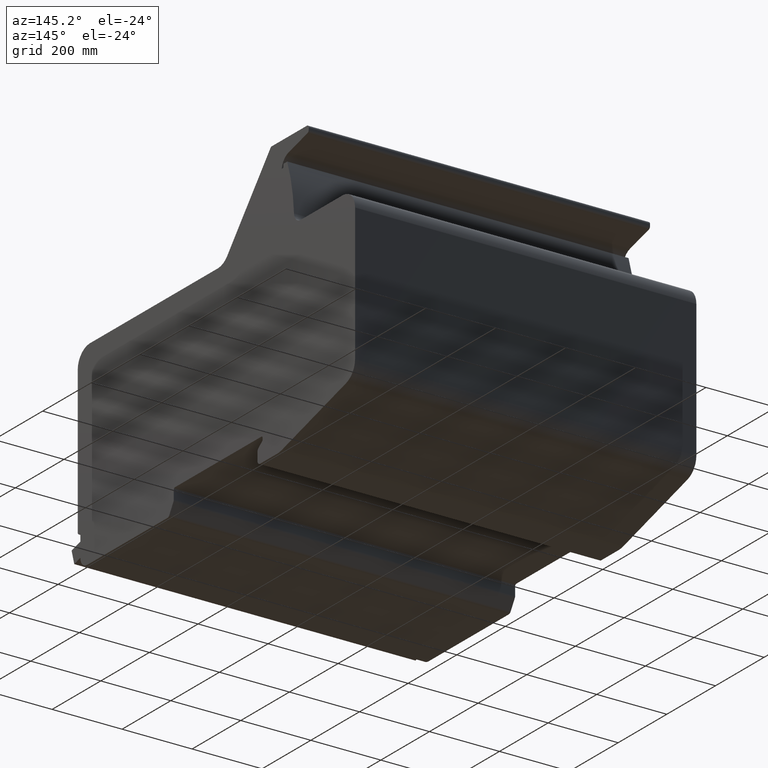
[diagram: clean part render]
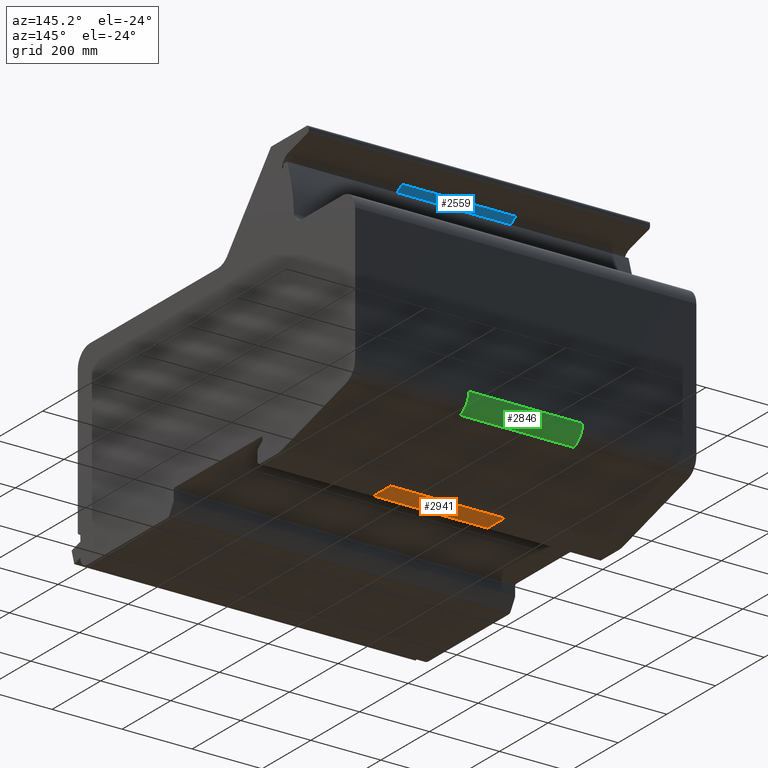
[diagram: same view with three faces highlighted in distinct colors, each labeled with its STEP entity id]
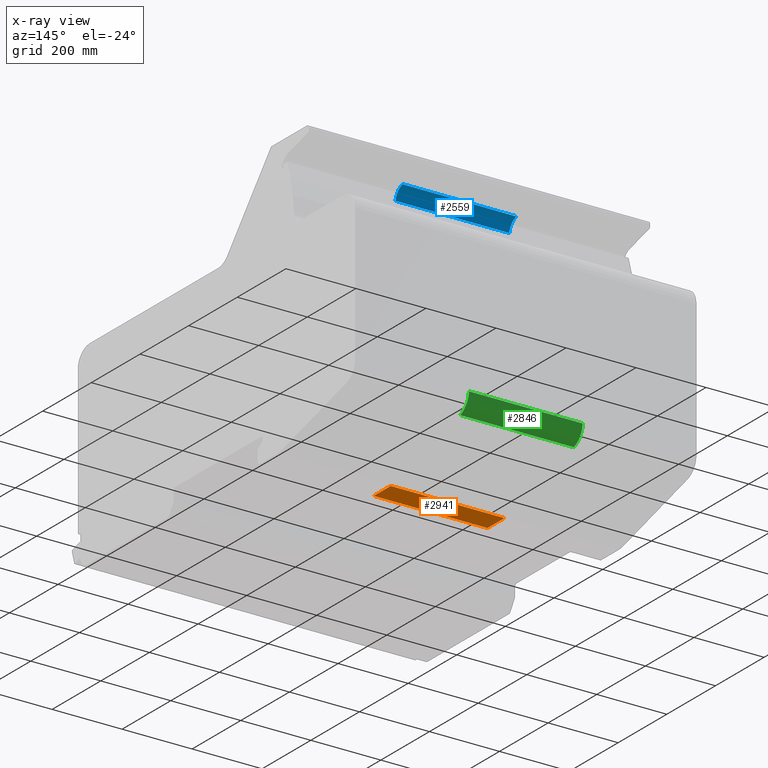
[diagram: x-ray of the same camera — body ghosted, the three highlighted faces saturated]
A machine part, auxiliary view with three faces highlighted in distinct colors.
The next image is the same camera in x-ray (body ghosted, the three faces saturated) — at least one of them is partly hidden behind the body in this view.
Their STEP definitions:

[orange] entity #2941 — the highlighted planar face has unit normal (0, 0, -1).
#2883=CARTESIAN_POINT('',(650.00000000000023,63.865135062700347,-67.499999999999929));
#2884=VERTEX_POINT('',#2883);
#2892=CARTESIAN_POINT('',(325.00000000000011,63.865135062700347,-67.499999999999929));
#2893=VERTEX_POINT('',#2892);
#2894=CARTESIAN_POINT('',(325.00000000000011,63.865135062700347,-67.499999999999929));
#2895=DIRECTION('',(1.0,0.0,0.0));
#2896=VECTOR('',#2895,325.00000000000011);
#2897=LINE('',#2894,#2896);
#2898=EDGE_CURVE('',#2893,#2884,#2897,.T.);
#2911=CARTESIAN_POINT('',(325.00000000000011,63.865135062700347,-67.499999999999929));
#2912=DIRECTION('',(0.0,0.0,-1.0));
#2913=DIRECTION('',(-1.0,0.0,0.0));
#2914=AXIS2_PLACEMENT_3D('',#2911,#2912,#2913);
#2915=PLANE('',#2914);
#2916=CARTESIAN_POINT('',(650.00000000000023,-6.000000000000227,-67.500000000000142));
#2917=VERTEX_POINT('',#2916);
#2918=CARTESIAN_POINT('',(650.00000000000023,63.865135062700347,-67.499999999999929));
#2919=DIRECTION('',(0.0,-1.0,0.0));
#2920=VECTOR('',#2919,69.865135062700574);
#2921=LINE('',#2918,#2920);
#2922=EDGE_CURVE('',#2884,#2917,#2921,.T.);
#2923=ORIENTED_EDGE('',*,*,#2922,.T.);
#2924=CARTESIAN_POINT('',(325.00000000000011,-6.000000000000227,-67.500000000000142));
#2925=VERTEX_POINT('',#2924);
#2926=CARTESIAN_POINT('',(325.00000000000011,-6.000000000000227,-67.500000000000142));
#2927=DIRECTION('',(1.0,0.0,0.0));
#2928=VECTOR('',#2927,325.00000000000011);
#2929=LINE('',#2926,#2928);
#2930=EDGE_CURVE('',#2925,#2917,#2929,.T.);
#2931=ORIENTED_EDGE('',*,*,#2930,.F.);
#2932=CARTESIAN_POINT('',(325.00000000000011,63.865135062700347,-67.499999999999929));
#2933=DIRECTION('',(0.0,-1.0,0.0));
#2934=VECTOR('',#2933,69.865135062700574);
#2935=LINE('',#2932,#2934);
#2936=EDGE_CURVE('',#2893,#2925,#2935,.T.);
#2937=ORIENTED_EDGE('',*,*,#2936,.F.);
#2938=ORIENTED_EDGE('',*,*,#2898,.T.);
#2939=EDGE_LOOP('',(#2923,#2931,#2937,#2938));
#2940=FACE_OUTER_BOUND('',#2939,.T.);
#2941=ADVANCED_FACE('',(#2940),#2915,.T.);

[blue] entity #2559 — the highlighted cylindrical surface (edge-blend (fillet) strip) has radius 40 mm, axis along (1, 0, 0).
#2501=CARTESIAN_POINT('',(650.00000000000023,112.45723819590467,689.34189875766424));
#2502=VERTEX_POINT('',#2501);
#2509=CARTESIAN_POINT('',(325.00000000000011,112.45723819590467,689.34189875766424));
#2510=VERTEX_POINT('',#2509);
#2511=CARTESIAN_POINT('',(325.00000000000011,112.45723819590467,689.34189875766424));
#2512=DIRECTION('',(1.0,0.0,0.0));
#2513=VECTOR('',#2512,325.00000000000011);
#2514=LINE('',#2511,#2513);
#2515=EDGE_CURVE('',#2510,#2502,#2514,.T.);
#2527=CARTESIAN_POINT('',(325.00000000000011,122.81000000000006,650.70486570610024));
#2528=DIRECTION('',(1.0,0.0,0.0));
#2529=DIRECTION('',(0.0,-0.740389703690504,0.672177868327341));
#2530=AXIS2_PLACEMENT_3D('',#2527,#2528,#2529);
#2531=CYLINDRICAL_SURFACE('',#2530,39.999999999999858);
#2532=CARTESIAN_POINT('',(650.00000000000023,83.355211224560435,657.28663163063993));
#2533=VERTEX_POINT('',#2532);
#2534=CARTESIAN_POINT('',(650.00000000000023,122.81000000000006,650.70486570610024));
#2535=DIRECTION('',(1.0,0.0,0.0));
#2536=DIRECTION('',(0.0,-0.740389703690504,0.672177868327341));
#2537=AXIS2_PLACEMENT_3D('',#2534,#2535,#2536);
#2538=CIRCLE('',#2537,39.999999999999851);
#2539=EDGE_CURVE('',#2502,#2533,#2538,.T.);
#2540=ORIENTED_EDGE('',*,*,#2539,.T.);
#2541=CARTESIAN_POINT('',(325.00000000000011,83.355211224560435,657.28663163063993));
#2542=VERTEX_POINT('',#2541);
#2543=CARTESIAN_POINT('',(325.00000000000011,83.355211224560435,657.28663163063993));
#2544=DIRECTION('',(1.0,0.0,0.0));
#2545=VECTOR('',#2544,325.00000000000011);
#2546=LINE('',#2543,#2545);
#2547=EDGE_CURVE('',#2542,#2533,#2546,.T.);
#2548=ORIENTED_EDGE('',*,*,#2547,.F.);
#2549=CARTESIAN_POINT('',(325.00000000000011,122.81000000000006,650.70486570610024));
#2550=DIRECTION('',(1.0,0.0,0.0));
#2551=DIRECTION('',(0.0,-0.740389703690504,0.672177868327341));
#2552=AXIS2_PLACEMENT_3D('',#2549,#2550,#2551);
#2553=CIRCLE('',#2552,39.999999999999851);
#2554=EDGE_CURVE('',#2510,#2542,#2553,.T.);
#2555=ORIENTED_EDGE('',*,*,#2554,.F.);
#2556=ORIENTED_EDGE('',*,*,#2515,.T.);
#2557=EDGE_LOOP('',(#2540,#2548,#2555,#2556));
#2558=FACE_OUTER_BOUND('',#2557,.T.);
#2559=ADVANCED_FACE('',(#2558),#2531,.F.);

[green] entity #2846 — the highlighted cylindrical surface (edge-blend (fillet) strip) has radius 50 mm, axis along (1, 0, 0).
#2788=CARTESIAN_POINT('',(650.00000000000023,385.0,58.28199216629983));
#2789=VERTEX_POINT('',#2788);
#2796=CARTESIAN_POINT('',(325.00000000000011,385.0,58.28199216629983));
#2797=VERTEX_POINT('',#2796);
#2798=CARTESIAN_POINT('',(325.00000000000011,385.0,58.28199216629983));
#2799=DIRECTION('',(1.0,0.0,0.0));
#2800=VECTOR('',#2799,325.00000000000011);
#2801=LINE('',#2798,#2800);
#2802=EDGE_CURVE('',#2797,#2789,#2801,.T.);
#2814=CARTESIAN_POINT('',(325.00000000000011,334.99999999998977,58.281992166286514));
#2815=DIRECTION('',(1.0,0.0,0.0));
#2816=DIRECTION('',(0.0,0.797834977904702,-0.602875897703502));
#2817=AXIS2_PLACEMENT_3D('',#2814,#2815,#2816);
#2818=CYLINDRICAL_SURFACE('',#2817,50.000000000010239);
#2819=CARTESIAN_POINT('',(650.00000000000023,348.65406519679937,10.182444313917918));
#2820=VERTEX_POINT('',#2819);
#2821=CARTESIAN_POINT('',(650.00000000000023,334.99999999998977,58.281992166286514));
#2822=DIRECTION('',(-1.0,0.0,0.0));
#2823=DIRECTION('',(0.0,0.797834977904702,-0.602875897703502));
#2824=AXIS2_PLACEMENT_3D('',#2821,#2822,#2823);
#2825=CIRCLE('',#2824,50.000000000010239);
#2826=EDGE_CURVE('',#2789,#2820,#2825,.T.);
#2827=ORIENTED_EDGE('',*,*,#2826,.T.);
#2828=CARTESIAN_POINT('',(325.00000000000011,348.65406519679937,10.182444313917918));
#2829=VERTEX_POINT('',#2828);
#2830=CARTESIAN_POINT('',(325.00000000000011,348.65406519679937,10.182444313917918));
#2831=DIRECTION('',(1.0,0.0,0.0));
#2832=VECTOR('',#2831,325.00000000000011);
#2833=LINE('',#2830,#2832);
#2834=EDGE_CURVE('',#2829,#2820,#2833,.T.);
#2835=ORIENTED_EDGE('',*,*,#2834,.F.);
#2836=CARTESIAN_POINT('',(325.00000000000011,334.99999999998977,58.281992166286514));
#2837=DIRECTION('',(-1.0,0.0,0.0));
#2838=DIRECTION('',(0.0,0.797834977904702,-0.602875897703502));
#2839=AXIS2_PLACEMENT_3D('',#2836,#2837,#2838);
#2840=CIRCLE('',#2839,50.000000000010239);
#2841=EDGE_CURVE('',#2797,#2829,#2840,.T.);
#2842=ORIENTED_EDGE('',*,*,#2841,.F.);
#2843=ORIENTED_EDGE('',*,*,#2802,.T.);
#2844=EDGE_LOOP('',(#2827,#2835,#2842,#2843));
#2845=FACE_OUTER_BOUND('',#2844,.T.);
#2846=ADVANCED_FACE('',(#2845),#2818,.T.);